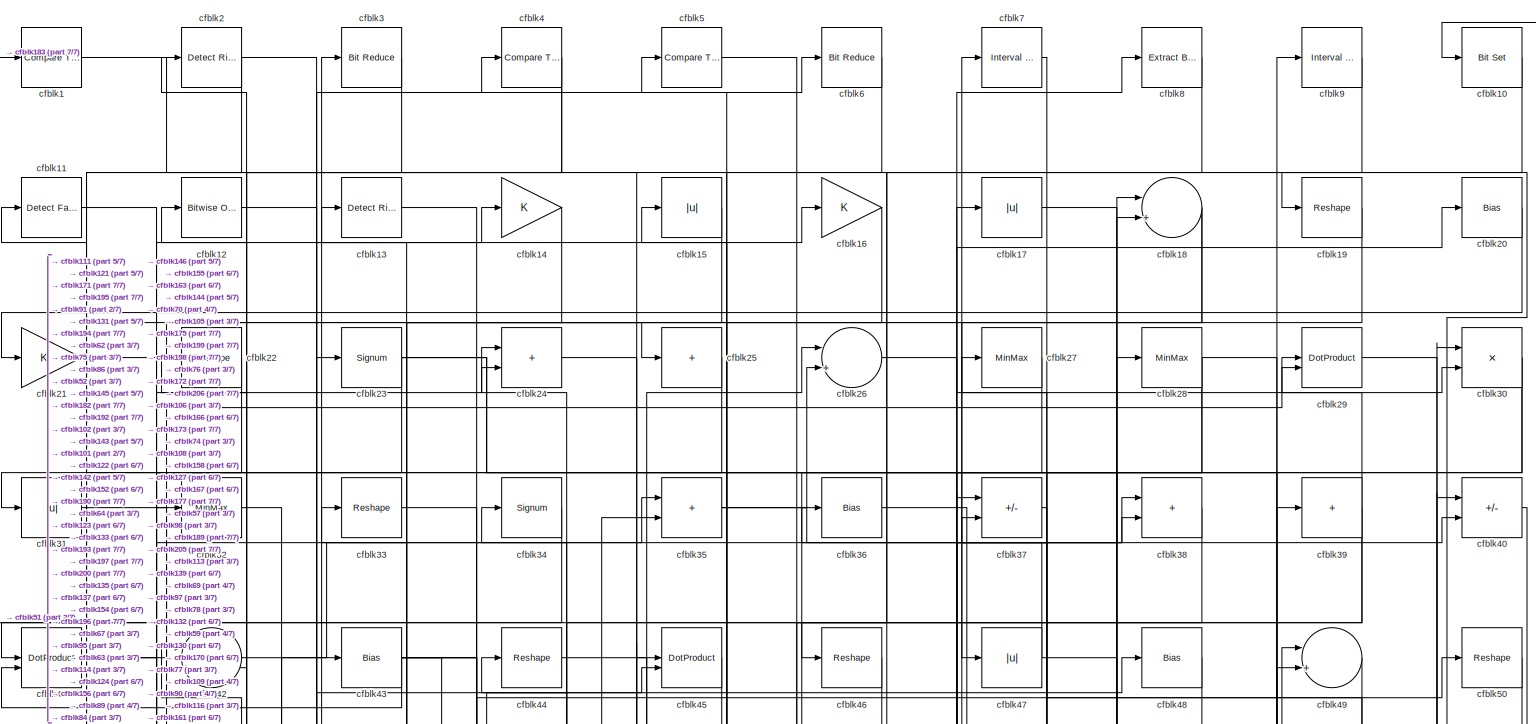
[diagram: root canvas - part 1/7, full width, top band]
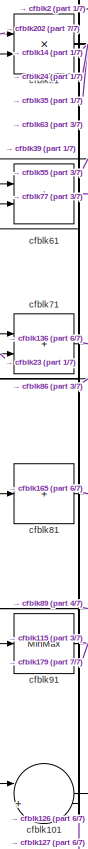
[diagram: root canvas - part 2/7, middle left region]
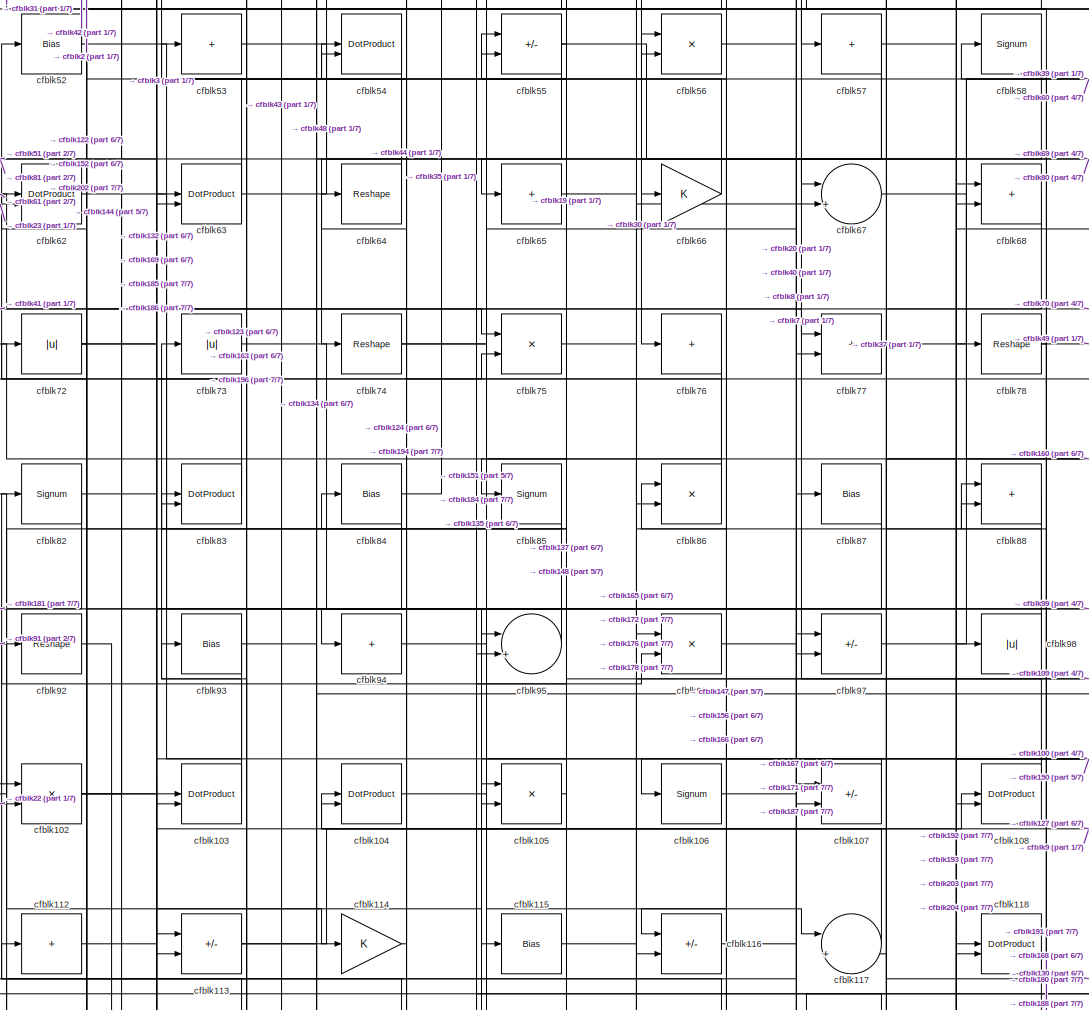
[diagram: root canvas - part 3/7, central region]
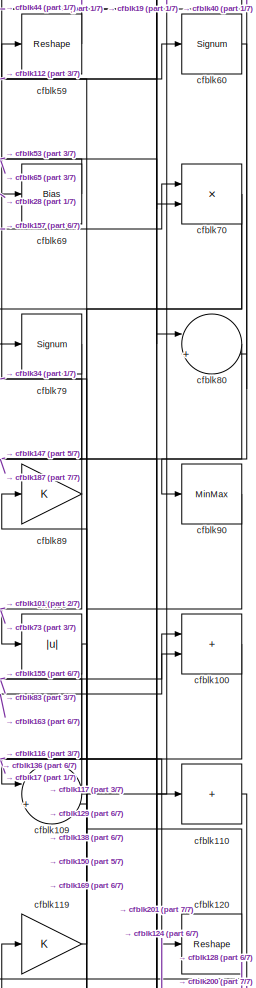
[diagram: root canvas - part 4/7, middle right region]
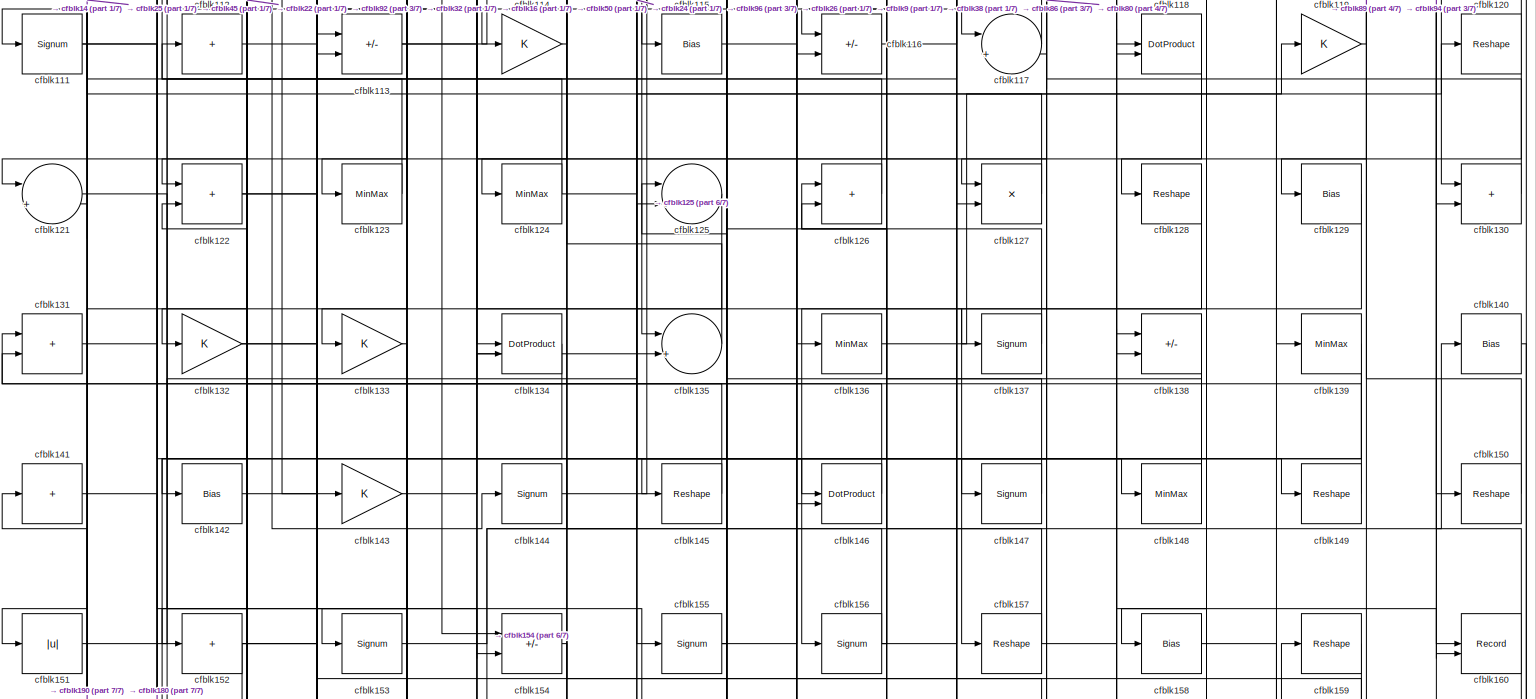
[diagram: root canvas - part 5/7, full width, middle band]
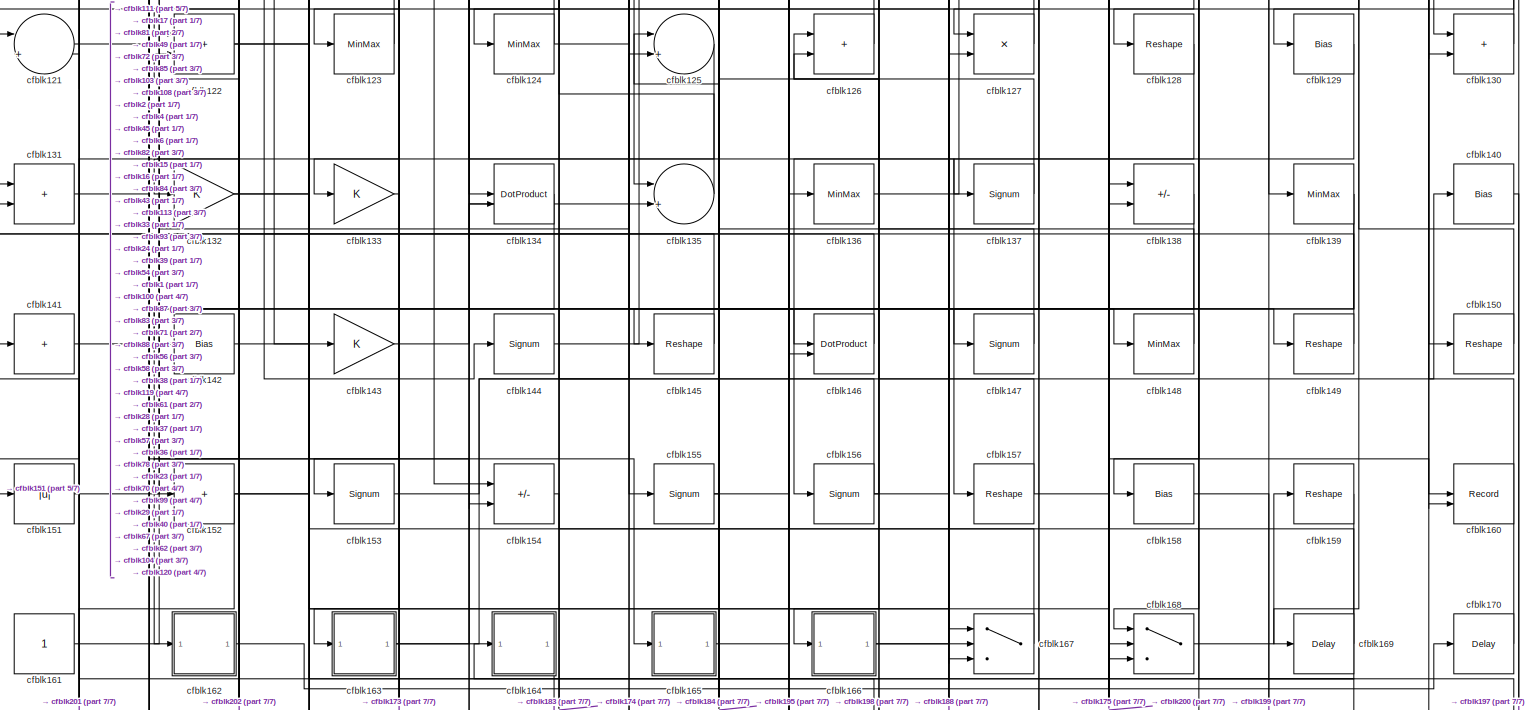
[diagram: root canvas - part 6/7, full width, bottom band]
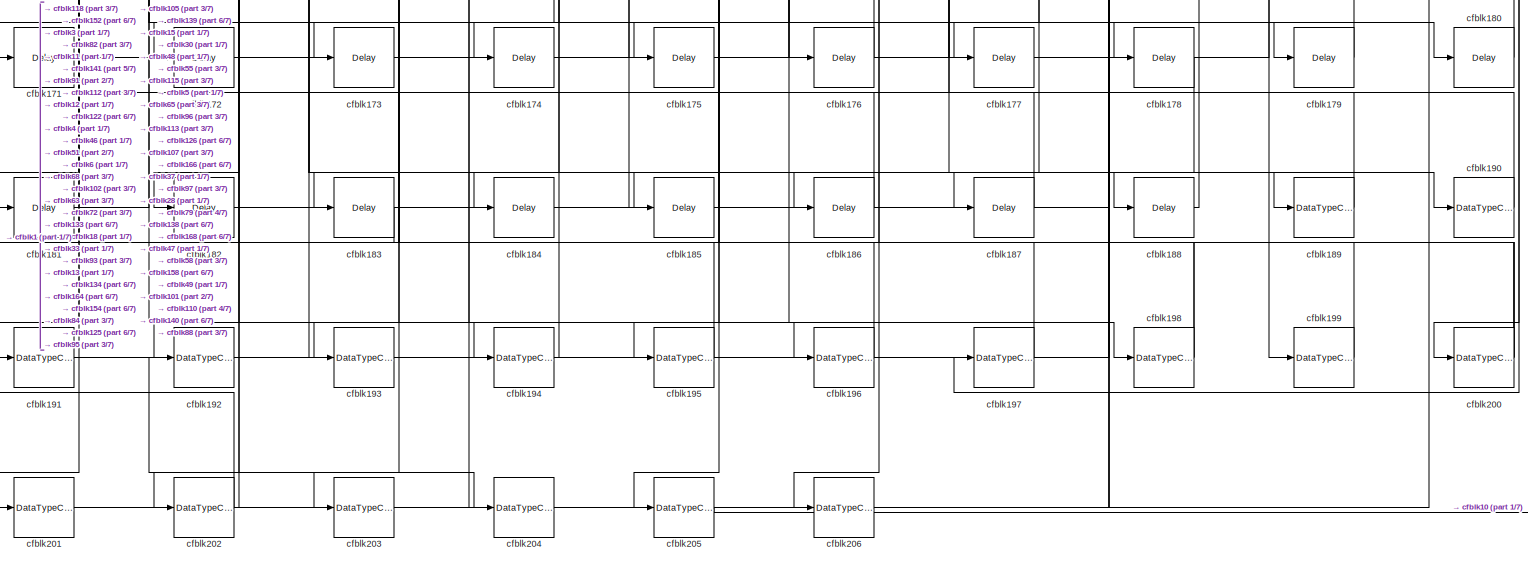
[diagram: root canvas - part 7/7, full width, bottom band]
MODEL slx_a49a852c828f
KIND model
CONFIG AbsTol = auto
CONFIG EnableMultiTasking = off
CONFIG FixedStep = auto
CONFIG MaxStep = auto
CONFIG MinStep = auto
CONFIG RelTol = 1e-3
CONFIG SampleTimeConstraint = Unconstrained
CONFIG SolverName = VariableStepAuto
CONFIG StartTime = 0.0
CONFIG StopTime = 10.0
BLOCK [Reference] cfblk1  REF=hdlsllib/Logic and Bit
Operations/Compare
To Zero
  SourceBlock = hdlsllib/Logic and Bit\nOperations/Compare\nTo Zero
  SourceType = Compare To Zero
BLOCK [Reference] cfblk10  REF=simulink/Logic and Bit
Operations/Bit Set
  LibrarySourceBlock = hdlsllib/Logic and Bit\nOperations/Bit Set
  SourceBlock = simulink/Logic and Bit\nOperations/Bit Set
  SourceType = Bit Set
BLOCK [Sum] cfblk100
  IconShape = rectangular
BLOCK [Sum] cfblk101
  Inputs = |++
BLOCK [Product] cfblk102
  Inputs = */
  RndMeth = Zero
  SaturateOnIntegerOverflow = on
BLOCK [DotProduct] cfblk103
  OutDataTypeStr = Inherit: Inherit via internal rule
BLOCK [DotProduct] cfblk104
  OutDataTypeStr = Inherit: Inherit via internal rule
BLOCK [Product] cfblk105
  Inputs = */
  RndMeth = Zero
  SaturateOnIntegerOverflow = on
BLOCK [Signum] cfblk106
BLOCK [Sum] cfblk107
  IconShape = rectangular
  Inputs = +-
BLOCK [DotProduct] cfblk108
  OutDataTypeStr = Inherit: Inherit via internal rule
BLOCK [Sum] cfblk109
  Inputs = |++
BLOCK [Reference] cfblk11  REF=hdlsllib/Logic and Bit
Operations/Detect Fall
Nonpositive
  SourceBlock = hdlsllib/Logic and Bit\nOperations/Detect Fall\nNonpositive
  SourceType = Detect Fall Nonpositive
BLOCK [Sum] cfblk110
  IconShape = rectangular
  Inputs = +
BLOCK [Signum] cfblk111
BLOCK [Sum] cfblk112
  IconShape = rectangular
  Inputs = +
BLOCK [Sum] cfblk113
  IconShape = rectangular
  Inputs = +-
BLOCK [Gain] cfblk114
BLOCK [Bias] cfblk115
  Bias = 0.0
  SaturateOnIntegerOverflow = off
BLOCK [Sum] cfblk116
  IconShape = rectangular
  Inputs = +-
BLOCK [Sum] cfblk117
  Inputs = |++
BLOCK [DotProduct] cfblk118
  OutDataTypeStr = Inherit: Inherit via internal rule
BLOCK [Gain] cfblk119
BLOCK [Reference] cfblk12  REF=simulink/Logic and Bit
Operations/Bitwise
Operator
  LibrarySourceBlock = hdlsllib/Logic and Bit\nOperations/Bitwise\nOperator
  SourceBlock = simulink/Logic and Bit\nOperations/Bitwise\nOperator
  SourceType = Bitwise Operator
BLOCK [Reshape] cfblk120
BLOCK [Sum] cfblk121
  Inputs = |++
BLOCK [Sum] cfblk122
  IconShape = rectangular
BLOCK [MinMax] cfblk123
BLOCK [MinMax] cfblk124
BLOCK [Sum] cfblk125
  Inputs = |++
BLOCK [Sum] cfblk126
  IconShape = rectangular
BLOCK [Product] cfblk127
  Inputs = */
  RndMeth = Zero
  SaturateOnIntegerOverflow = on
BLOCK [Reshape] cfblk128
BLOCK [Bias] cfblk129
  Bias = 0.0
  SaturateOnIntegerOverflow = off
BLOCK [Reference] cfblk13  REF=hdlsllib/Logic and Bit
Operations/Detect Rise
Nonnegative
  SourceBlock = hdlsllib/Logic and Bit\nOperations/Detect Rise\nNonnegative
  SourceType = Detect Rise Nonnegative
BLOCK [Sum] cfblk130
  IconShape = rectangular
BLOCK [Sum] cfblk131
  IconShape = rectangular
BLOCK [Gain] cfblk132
BLOCK [Gain] cfblk133
BLOCK [DotProduct] cfblk134
  OutDataTypeStr = Inherit: Inherit via internal rule
BLOCK [Sum] cfblk135
  Inputs = |++
BLOCK [MinMax] cfblk136
BLOCK [Signum] cfblk137
BLOCK [Sum] cfblk138
  IconShape = rectangular
  Inputs = +-
BLOCK [MinMax] cfblk139
BLOCK [Gain] cfblk14
BLOCK [Bias] cfblk140
  Bias = 0.0
  SaturateOnIntegerOverflow = off
BLOCK [Sum] cfblk141
  IconShape = rectangular
  Inputs = +
BLOCK [Bias] cfblk142
  Bias = 0.0
  SaturateOnIntegerOverflow = off
BLOCK [Gain] cfblk143
BLOCK [Signum] cfblk144
BLOCK [Reshape] cfblk145
BLOCK [DotProduct] cfblk146
  OutDataTypeStr = Inherit: Inherit via internal rule
BLOCK [Signum] cfblk147
BLOCK [MinMax] cfblk148
BLOCK [Reshape] cfblk149
BLOCK [Abs] cfblk15
  SaturateOnIntegerOverflow = off
BLOCK [Reshape] cfblk150
BLOCK [Abs] cfblk151
  SaturateOnIntegerOverflow = off
BLOCK [Sum] cfblk152
  IconShape = rectangular
  Inputs = +
BLOCK [Signum] cfblk153
BLOCK [Sum] cfblk154
  IconShape = rectangular
  Inputs = +-
BLOCK [Signum] cfblk155
BLOCK [Signum] cfblk156
BLOCK [Reshape] cfblk157
BLOCK [Bias] cfblk158
  Bias = 0.0
  SaturateOnIntegerOverflow = off
BLOCK [Reshape] cfblk159
BLOCK [Gain] cfblk16
BLOCK [Record] cfblk160
  CompatibilityTag = XY
  FileSettingsInternal = {"entries":[{"content":{"excelSettings":{"content":{},"type":"Streamout.ExcelSettings"}},"type":"Streamout.FileSettingStorage","uuid":""}],"packageUris":["http:\/\/schema.mathworks.com\/mf0\/streamout_blocks\/R2020a"],"version":"1.0"}
  Layout = [1 1]
  SignalsInternal = {"entries":[{"content":{"signals":[{"content":{"blockPath":[],"dimensions":[1],"domain":"","lineColor":"#a2142f","plots":[1],"port":1,"signalID":401,"signalName":"XY Graph:1"},"type":"RecordBlkView.Signal","uuid":""},{"content":{"blockPath":[],"dimensions":[1],"domain":"","lineColor":"#139fff","plots":[1],"port":2,"signalID":404,"signalName":"XY Graph:2"},"type":"RecordBlkView.Signal","uuid":""}]}...<+144ch>
  VisualizationBindings = {"xyplotplugin":{"info":[{"series":[{"bindingParametersList":[{"parameter":"X-Axis","signalID":401,"signalName":"XY Graph:1"},{"parameter":"Y-Axis","signalID":404,"signalName":"XY Graph:2"}],"seriesID":26922}],"subplotID":1}]}}
  st = -1
BLOCK [Constant] cfblk161
  SampleTime = -1
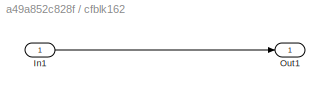
BLOCK [SubSystem] cfblk162
  LibrarySourceBlock = hdlsllib/Ports &\nSubsystems/Subsystem
BLOCK [Inport] cfblk162/In1
BLOCK [Outport] cfblk162/Out1
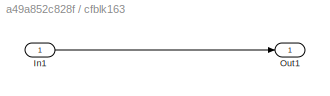
BLOCK [SubSystem] cfblk163
  LibrarySourceBlock = hdlsllib/Ports &\nSubsystems/Subsystem
BLOCK [Inport] cfblk163/In1
BLOCK [Outport] cfblk163/Out1
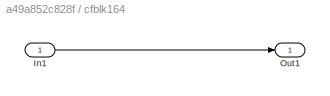
BLOCK [SubSystem] cfblk164
  LibrarySourceBlock = hdlsllib/Ports &\nSubsystems/Subsystem
BLOCK [Inport] cfblk164/In1
BLOCK [Outport] cfblk164/Out1
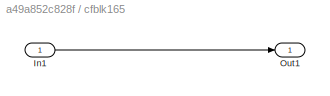
BLOCK [SubSystem] cfblk165
  LibrarySourceBlock = hdlsllib/Ports &\nSubsystems/Subsystem
BLOCK [Inport] cfblk165/In1
BLOCK [Outport] cfblk165/Out1
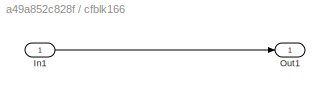
BLOCK [SubSystem] cfblk166
  LibrarySourceBlock = hdlsllib/Ports &\nSubsystems/Subsystem
BLOCK [Inport] cfblk166/In1
BLOCK [Outport] cfblk166/Out1
BLOCK [Switch] cfblk167
  InputSameDT = off
  SaturateOnIntegerOverflow = off
BLOCK [Switch] cfblk168
  InputSameDT = off
  SaturateOnIntegerOverflow = off
BLOCK [Delay] cfblk169
  InputPortMap = u0
  SampleTime = 1
BLOCK [Abs] cfblk17
  SaturateOnIntegerOverflow = off
BLOCK [Delay] cfblk170
  InputPortMap = u0
  SampleTime = 1
BLOCK [Delay] cfblk171
  InputPortMap = u0
  SampleTime = 1
BLOCK [Delay] cfblk172
  InputPortMap = u0
  SampleTime = 1
BLOCK [Delay] cfblk173
  InputPortMap = u0
  SampleTime = 1
BLOCK [Delay] cfblk174
  InputPortMap = u0
  SampleTime = 1
BLOCK [Delay] cfblk175
  InputPortMap = u0
  SampleTime = 1
BLOCK [Delay] cfblk176
  InputPortMap = u0
  SampleTime = 1
BLOCK [Delay] cfblk177
  InputPortMap = u0
  SampleTime = 1
BLOCK [Delay] cfblk178
  InputPortMap = u0
  SampleTime = 1
BLOCK [Delay] cfblk179
  InputPortMap = u0
  SampleTime = 1
BLOCK [Sum] cfblk18
  Inputs = |++
BLOCK [Delay] cfblk180
  InputPortMap = u0
  SampleTime = 1
BLOCK [Delay] cfblk181
  InputPortMap = u0
  SampleTime = 1
BLOCK [Delay] cfblk182
  InputPortMap = u0
  SampleTime = 1
BLOCK [Delay] cfblk183
  InputPortMap = u0
  SampleTime = 1
BLOCK [Delay] cfblk184
  InputPortMap = u0
  SampleTime = 1
BLOCK [Delay] cfblk185
  InputPortMap = u0
  SampleTime = 1
BLOCK [Delay] cfblk186
  InputPortMap = u0
  SampleTime = 1
BLOCK [Delay] cfblk187
  InputPortMap = u0
  SampleTime = 1
BLOCK [Delay] cfblk188
  InputPortMap = u0
  SampleTime = 1
BLOCK [DataTypeConversion] cfblk189
  OutDataTypeStr = boolean
  RndMeth = Floor
  SaturateOnIntegerOverflow = off
BLOCK [Reshape] cfblk19
BLOCK [DataTypeConversion] cfblk190
  OutDataTypeStr = uint8
  RndMeth = Floor
  SaturateOnIntegerOverflow = off
BLOCK [DataTypeConversion] cfblk191
  RndMeth = Floor
  SaturateOnIntegerOverflow = off
BLOCK [DataTypeConversion] cfblk192
  OutDataTypeStr = uint8
  RndMeth = Floor
  SaturateOnIntegerOverflow = off
BLOCK [DataTypeConversion] cfblk193
  OutDataTypeStr = uint8
  RndMeth = Floor
  SaturateOnIntegerOverflow = off
BLOCK [DataTypeConversion] cfblk194
  OutDataTypeStr = uint8
  RndMeth = Floor
  SaturateOnIntegerOverflow = off
BLOCK [DataTypeConversion] cfblk195
  OutDataTypeStr = uint8
  RndMeth = Floor
  SaturateOnIntegerOverflow = off
BLOCK [DataTypeConversion] cfblk196
  OutDataTypeStr = uint8
  RndMeth = Floor
  SaturateOnIntegerOverflow = off
BLOCK [DataTypeConversion] cfblk197
  OutDataTypeStr = uint8
  RndMeth = Floor
  SaturateOnIntegerOverflow = off
BLOCK [DataTypeConversion] cfblk198
  RndMeth = Floor
  SaturateOnIntegerOverflow = off
BLOCK [DataTypeConversion] cfblk199
  OutDataTypeStr = uint8
  RndMeth = Floor
  SaturateOnIntegerOverflow = off
BLOCK [Reference] cfblk2  REF=hdlsllib/Logic and Bit
Operations/Detect Rise
Nonnegative
  SourceBlock = hdlsllib/Logic and Bit\nOperations/Detect Rise\nNonnegative
  SourceType = Detect Rise Nonnegative
BLOCK [Bias] cfblk20
  Bias = 0.0
  SaturateOnIntegerOverflow = off
BLOCK [DataTypeConversion] cfblk200
  RndMeth = Floor
  SaturateOnIntegerOverflow = off
BLOCK [DataTypeConversion] cfblk201
  OutDataTypeStr = uint8
  RndMeth = Floor
  SaturateOnIntegerOverflow = off
BLOCK [DataTypeConversion] cfblk202
  RndMeth = Floor
  SaturateOnIntegerOverflow = off
BLOCK [DataTypeConversion] cfblk203
  OutDataTypeStr = uint8
  RndMeth = Floor
  SaturateOnIntegerOverflow = off
BLOCK [DataTypeConversion] cfblk204
  OutDataTypeStr = uint8
  RndMeth = Floor
  SaturateOnIntegerOverflow = off
BLOCK [DataTypeConversion] cfblk205
  OutDataTypeStr = boolean
  RndMeth = Floor
  SaturateOnIntegerOverflow = off
BLOCK [DataTypeConversion] cfblk206
  OutDataTypeStr = uint8
  RndMeth = Floor
  SaturateOnIntegerOverflow = off
BLOCK [Gain] cfblk21
BLOCK [Reshape] cfblk22
BLOCK [Signum] cfblk23
BLOCK [Sum] cfblk24
  IconShape = rectangular
BLOCK [Sum] cfblk25
  IconShape = rectangular
  Inputs = +
BLOCK [Sum] cfblk26
  Inputs = |++
BLOCK [MinMax] cfblk27
BLOCK [MinMax] cfblk28
BLOCK [DotProduct] cfblk29
  OutDataTypeStr = Inherit: Inherit via internal rule
BLOCK [Reference] cfblk3  REF=hdlsllib/Logic and Bit
Operations/Bit Reduce
  SourceBlock = hdlsllib/Logic and Bit\nOperations/Bit Reduce
  SourceType = Bit Reduce
BLOCK [Product] cfblk30
  Inputs = */
  RndMeth = Zero
  SaturateOnIntegerOverflow = on
BLOCK [Abs] cfblk31
  SaturateOnIntegerOverflow = off
BLOCK [MinMax] cfblk32
BLOCK [Reshape] cfblk33
BLOCK [Signum] cfblk34
BLOCK [Sum] cfblk35
  IconShape = rectangular
BLOCK [Bias] cfblk36
  Bias = 0.0
  SaturateOnIntegerOverflow = off
BLOCK [Sum] cfblk37
  IconShape = rectangular
  Inputs = +-
BLOCK [Sum] cfblk38
  IconShape = rectangular
BLOCK [Sum] cfblk39
  IconShape = rectangular
  Inputs = +
BLOCK [Reference] cfblk4  REF=hdlsllib/Logic and Bit
Operations/Compare
To Constant
  SourceBlock = hdlsllib/Logic and Bit\nOperations/Compare\nTo Constant
  SourceType = Compare To Constant
BLOCK [Sum] cfblk40
  IconShape = rectangular
  Inputs = +-
BLOCK [DotProduct] cfblk41
  OutDataTypeStr = Inherit: Inherit via internal rule
BLOCK [Sum] cfblk42
  Inputs = |++
BLOCK [Bias] cfblk43
  Bias = 0.0
  SaturateOnIntegerOverflow = off
BLOCK [Reshape] cfblk44
BLOCK [DotProduct] cfblk45
  OutDataTypeStr = Inherit: Inherit via internal rule
BLOCK [Reshape] cfblk46
BLOCK [Abs] cfblk47
  SaturateOnIntegerOverflow = off
BLOCK [Bias] cfblk48
  Bias = 0.0
  SaturateOnIntegerOverflow = off
BLOCK [Sum] cfblk49
  Inputs = |++
BLOCK [Reference] cfblk5  REF=hdlsllib/Logic and Bit
Operations/Compare
To Zero
  SourceBlock = hdlsllib/Logic and Bit\nOperations/Compare\nTo Zero
  SourceType = Compare To Zero
BLOCK [Reshape] cfblk50
BLOCK [Product] cfblk51
  Inputs = */
  RndMeth = Zero
  SaturateOnIntegerOverflow = on
BLOCK [Bias] cfblk52
  Bias = 0.0
  SaturateOnIntegerOverflow = off
BLOCK [Sum] cfblk53
  IconShape = rectangular
  Inputs = +
BLOCK [DotProduct] cfblk54
  OutDataTypeStr = Inherit: Inherit via internal rule
BLOCK [Sum] cfblk55
  IconShape = rectangular
  Inputs = +-
BLOCK [Product] cfblk56
  Inputs = */
  RndMeth = Zero
  SaturateOnIntegerOverflow = on
BLOCK [Sum] cfblk57
  IconShape = rectangular
  Inputs = +
BLOCK [Signum] cfblk58
BLOCK [Reshape] cfblk59
BLOCK [Reference] cfblk6  REF=hdlsllib/Logic and Bit
Operations/Bit Reduce
  SourceBlock = hdlsllib/Logic and Bit\nOperations/Bit Reduce
  SourceType = Bit Reduce
BLOCK [Signum] cfblk60
BLOCK [Sum] cfblk61
  IconShape = rectangular
BLOCK [DotProduct] cfblk62
  OutDataTypeStr = Inherit: Inherit via internal rule
BLOCK [DotProduct] cfblk63
  OutDataTypeStr = Inherit: Inherit via internal rule
BLOCK [Reshape] cfblk64
BLOCK [Sum] cfblk65
  IconShape = rectangular
  Inputs = +
BLOCK [Gain] cfblk66
BLOCK [Sum] cfblk67
  Inputs = |++
BLOCK [Sum] cfblk68
  IconShape = rectangular
BLOCK [Bias] cfblk69
  Bias = 0.0
  SaturateOnIntegerOverflow = off
BLOCK [Reference] cfblk7  REF=hdlsllib/Logic and Bit
Operations/Interval Test
  SourceBlock = hdlsllib/Logic and Bit\nOperations/Interval Test
  SourceType = Interval Test
BLOCK [Product] cfblk70
  Inputs = */
  RndMeth = Zero
  SaturateOnIntegerOverflow = on
BLOCK [Sum] cfblk71
  IconShape = rectangular
BLOCK [Abs] cfblk72
  SaturateOnIntegerOverflow = off
BLOCK [Abs] cfblk73
  SaturateOnIntegerOverflow = off
BLOCK [Reshape] cfblk74
BLOCK [Product] cfblk75
  Inputs = */
  RndMeth = Zero
  SaturateOnIntegerOverflow = on
BLOCK [Sum] cfblk76
  IconShape = rectangular
  Inputs = +
BLOCK [Sum] cfblk77
  IconShape = rectangular
BLOCK [Reshape] cfblk78
BLOCK [Signum] cfblk79
BLOCK [Reference] cfblk8  REF=simulink/Logic and Bit
Operations/Extract Bits
  LibrarySourceBlock = hdlsllib/Logic and Bit\nOperations/Extract Bits
  SourceBlock = simulink/Logic and Bit\nOperations/Extract Bits
  SourceType = Extract Bits
BLOCK [Sum] cfblk80
  Inputs = |++
BLOCK [Sum] cfblk81
  IconShape = rectangular
  Inputs = +
BLOCK [Signum] cfblk82
BLOCK [DotProduct] cfblk83
  OutDataTypeStr = Inherit: Inherit via internal rule
BLOCK [Bias] cfblk84
  Bias = 0.0
  SaturateOnIntegerOverflow = off
BLOCK [Signum] cfblk85
BLOCK [Product] cfblk86
  Inputs = */
  RndMeth = Zero
  SaturateOnIntegerOverflow = on
BLOCK [Bias] cfblk87
  Bias = 0.0
  SaturateOnIntegerOverflow = off
BLOCK [Sum] cfblk88
  IconShape = rectangular
BLOCK [Gain] cfblk89
BLOCK [Reference] cfblk9  REF=hdlsllib/Logic and Bit
Operations/Interval Test
  SourceBlock = hdlsllib/Logic and Bit\nOperations/Interval Test
  SourceType = Interval Test
BLOCK [MinMax] cfblk90
BLOCK [MinMax] cfblk91
BLOCK [Reshape] cfblk92
BLOCK [Bias] cfblk93
  Bias = 0.0
  SaturateOnIntegerOverflow = off
BLOCK [Sum] cfblk94
  IconShape = rectangular
  Inputs = +
BLOCK [Sum] cfblk95
  Inputs = |++
BLOCK [Product] cfblk96
  Inputs = */
  RndMeth = Zero
  SaturateOnIntegerOverflow = on
BLOCK [Sum] cfblk97
  IconShape = rectangular
  Inputs = +-
BLOCK [Abs] cfblk98
  SaturateOnIntegerOverflow = off
BLOCK [Abs] cfblk99
  SaturateOnIntegerOverflow = off
LINE cfblk100:1 -> cfblk116:1
NET cfblk101:1 -> cfblk23:1, cfblk71:2
NET cfblk102:1 -> cfblk114:1, cfblk186:1, cfblk43:1
LINE cfblk103:1 -> cfblk73:1
LINE cfblk104:1 -> cfblk117:1
LINE cfblk105:1 -> cfblk55:1
LINE cfblk106:1 -> cfblk40:2
LINE cfblk107:1 -> cfblk106:1
LINE cfblk108:1 -> cfblk7:1
NET cfblk109:1 -> cfblk19:1, cfblk83:2
LINE cfblk10:1 -> cfblk206:1
LINE cfblk110:1 -> cfblk200:1
NET cfblk111:1 -> cfblk149:1, cfblk154:2
LINE cfblk112:1 -> cfblk60:1
NET cfblk113:1 -> cfblk127:2, cfblk9:1
LINE cfblk114:1 -> cfblk44:1
LINE cfblk115:1 -> cfblk178:1
LINE cfblk116:1 -> cfblk20:1
LINE cfblk117:1 -> cfblk64:1
LINE cfblk118:1 -> cfblk191:1
LINE cfblk119:1 -> cfblk59:1
LINE cfblk11:1 -> cfblk194:1
NET cfblk120:1 -> cfblk128:1, cfblk79:1
LINE cfblk121:1 -> cfblk148:1
NET cfblk122:1 -> cfblk56:1, cfblk6:1
LINE cfblk123:1 -> cfblk82:1
NET cfblk124:1 -> cfblk120:1, cfblk62:1
LINE cfblk125:1 -> cfblk151:1
LINE cfblk126:1 -> cfblk71:1
LINE cfblk127:1 -> cfblk61:1
LINE cfblk128:1 -> cfblk157:1
LINE cfblk129:1 -> cfblk156:1
LINE cfblk12:1 -> cfblk190:1
LINE cfblk130:1 -> cfblk104:1
LINE cfblk131:1 -> cfblk32:1
NET cfblk132:1 -> cfblk108:1, cfblk4:1
LINE cfblk133:1 -> cfblk173:1
LINE cfblk134:1 -> cfblk162:1
LINE cfblk135:1 -> cfblk104:2
LINE cfblk136:1 -> cfblk119:1
LINE cfblk137:1 -> cfblk83:1
LINE cfblk138:1 -> cfblk153:1
NET cfblk139:1 -> cfblk184:1, cfblk195:1
LINE cfblk13:1 -> cfblk196:1
LINE cfblk140:1 -> cfblk197:1
LINE cfblk141:1 -> cfblk180:1
LINE cfblk142:1 -> cfblk16:1
LINE cfblk143:1 -> cfblk50:1
LINE cfblk144:1 -> cfblk26:1
LINE cfblk145:1 -> cfblk22:1
LINE cfblk146:1 -> cfblk131:2
LINE cfblk147:1 -> cfblk86:1
LINE cfblk148:1 -> cfblk92:1
LINE cfblk149:1 -> cfblk131:1
LINE cfblk14:1 -> cfblk121:1
LINE cfblk150:1 -> cfblk89:1
LINE cfblk151:1 -> cfblk96:2
NET cfblk152:1 -> cfblk168:3, cfblk201:1, cfblk45:2
LINE cfblk153:1 -> cfblk140:1
LINE cfblk154:1 -> cfblk174:1
NET cfblk155:1 -> cfblk100:1, cfblk125:1
NET cfblk156:1 -> cfblk24:2, cfblk56:2, cfblk87:1
NET cfblk157:1 -> cfblk126:1, cfblk70:1
LINE cfblk158:1 -> cfblk199:1
LINE cfblk159:1 -> cfblk164:1
LINE cfblk15:1 -> cfblk123:1
LINE cfblk161:1 -> cfblk17:1
LINE cfblk162/In1:1 -> cfblk162/Out1:1
LINE cfblk162:1 -> cfblk170:1
LINE cfblk163/In1:1 -> cfblk163/Out1:1
NET cfblk163:1 -> cfblk100:2, cfblk45:1
LINE cfblk164/In1:1 -> cfblk164/Out1:1
LINE cfblk164:1 -> cfblk183:1
LINE cfblk165/In1:1 -> cfblk165/Out1:1
LINE cfblk165:1 -> cfblk88:1
LINE cfblk166/In1:1 -> cfblk166/Out1:1
NET cfblk166:1 -> cfblk188:1, cfblk38:1
LINE cfblk167:1 -> cfblk54:1
LINE cfblk168:1 -> cfblk159:1
LINE cfblk169:1 -> cfblk103:1
LINE cfblk16:1 -> cfblk133:1
LINE cfblk170:1 -> cfblk40:1
LINE cfblk171:1 -> cfblk107:1
LINE cfblk172:1 -> cfblk96:1
LINE cfblk173:1 -> cfblk37:1
LINE cfblk174:1 -> cfblk125:2
LINE cfblk175:1 -> cfblk138:1
LINE cfblk176:1 -> cfblk113:1
LINE cfblk177:1 -> cfblk49:2
LINE cfblk178:1 -> cfblk203:1
LINE cfblk179:1 -> cfblk101:2
LINE cfblk17:1 -> cfblk109:1
LINE cfblk180:1 -> cfblk88:2
LINE cfblk181:1 -> cfblk102:1
LINE cfblk182:1 -> cfblk18:1
LINE cfblk183:1 -> cfblk1:1
LINE cfblk184:1 -> cfblk95:2
LINE cfblk185:1 -> cfblk105:2
LINE cfblk186:1 -> cfblk55:2
LINE cfblk187:1 -> cfblk97:1
LINE cfblk188:1 -> cfblk58:1
LINE cfblk189:1 -> cfblk12:1
NET cfblk18:1 -> cfblk193:1, cfblk47:1
LINE cfblk190:1 -> cfblk141:1
NET cfblk191:1 -> cfblk204:1, cfblk63:1
LINE cfblk192:1 -> cfblk118:1
LINE cfblk193:1 -> cfblk118:2
LINE cfblk194:1 -> cfblk84:1
LINE cfblk195:1 -> cfblk11:1
LINE cfblk196:1 -> cfblk93:1
LINE cfblk197:1 -> cfblk13:1
NET cfblk198:1 -> cfblk122:2, cfblk15:1
LINE cfblk199:1 -> cfblk5:1
LINE cfblk19:1 -> cfblk105:1
LINE cfblk1:1 -> cfblk155:1
NET cfblk200:1 -> cfblk126:2, cfblk168:2, cfblk33:1
LINE cfblk201:1 -> cfblk110:1
NET cfblk202:1 -> cfblk112:1, cfblk134:2, cfblk51:1
LINE cfblk203:1 -> cfblk68:1
LINE cfblk204:1 -> cfblk68:2
LINE cfblk205:1 -> cfblk10:1
LINE cfblk206:1 -> cfblk28:1
LINE cfblk20:1 -> cfblk21:1
LINE cfblk21:1 -> cfblk25:1
LINE cfblk22:1 -> cfblk102:2
NET cfblk23:1 -> cfblk139:1, cfblk62:2, cfblk78:1
LINE cfblk24:1 -> cfblk146:1
LINE cfblk25:1 -> cfblk111:1
LINE cfblk26:1 -> cfblk30:2
LINE cfblk27:1 -> cfblk31:1
NET cfblk28:1 -> cfblk167:3, cfblk177:1, cfblk69:1
LINE cfblk29:1 -> cfblk130:2
NET cfblk2:1 -> cfblk167:2, cfblk91:1
NET cfblk30:1 -> cfblk175:1, cfblk76:1
LINE cfblk31:1 -> cfblk86:2
LINE cfblk32:1 -> cfblk143:1
LINE cfblk33:1 -> cfblk137:1
LINE cfblk34:1 -> cfblk41:1
NET cfblk35:1 -> cfblk26:2, cfblk38:2
LINE cfblk36:1 -> cfblk158:1
LINE cfblk37:1 -> cfblk127:1
LINE cfblk38:1 -> cfblk146:2
NET cfblk39:1 -> cfblk124:1, cfblk29:2, cfblk51:2
LINE cfblk3:1 -> cfblk171:1
LINE cfblk40:1 -> cfblk90:1
NET cfblk41:1 -> cfblk29:1, cfblk75:1
LINE cfblk42:1 -> cfblk18:2
NET cfblk43:1 -> cfblk135:2, cfblk154:1, cfblk41:2, cfblk67:1, cfblk95:1
LINE cfblk44:1 -> cfblk70:2
LINE cfblk45:1 -> cfblk121:2
LINE cfblk46:1 -> cfblk172:1
NET cfblk47:1 -> cfblk189:1, cfblk36:1
LINE cfblk48:1 -> cfblk205:1
LINE cfblk49:1 -> cfblk132:1
NET cfblk4:1 -> cfblk192:1, cfblk42:2
LINE cfblk50:1 -> cfblk142:1
NET cfblk51:1 -> cfblk14:1, cfblk24:1, cfblk35:1, cfblk63:2
NET cfblk52:1 -> cfblk42:1, cfblk97:2
LINE cfblk53:1 -> cfblk80:1
LINE cfblk54:1 -> cfblk74:1
NET cfblk55:1 -> cfblk108:2, cfblk81:1, cfblk85:1
LINE cfblk56:1 -> cfblk167:1
NET cfblk57:1 -> cfblk160:2, cfblk66:1, cfblk77:2
LINE cfblk58:1 -> cfblk166:1
LINE cfblk59:1 -> cfblk27:1
LINE cfblk5:1 -> cfblk198:1
LINE cfblk60:1 -> cfblk80:2
LINE cfblk61:1 -> cfblk77:1
LINE cfblk62:1 -> cfblk130:1
NET cfblk63:1 -> cfblk2:1, cfblk48:1
LINE cfblk64:1 -> cfblk3:1
LINE cfblk65:1 -> cfblk176:1
LINE cfblk66:1 -> cfblk53:1
LINE cfblk67:1 -> cfblk160:1
LINE cfblk68:1 -> cfblk202:1
LINE cfblk69:1 -> cfblk65:1
LINE cfblk6:1 -> cfblk182:1
NET cfblk70:1 -> cfblk117:2, cfblk129:1
LINE cfblk71:1 -> cfblk136:1
NET cfblk72:1 -> cfblk122:1, cfblk185:1, cfblk54:2
LINE cfblk73:1 -> cfblk99:1
NET cfblk74:1 -> cfblk8:1, cfblk98:1
LINE cfblk75:1 -> cfblk67:2
LINE cfblk76:1 -> cfblk116:2
LINE cfblk77:1 -> cfblk30:1
NET cfblk78:1 -> cfblk168:1, cfblk49:1
LINE cfblk79:1 -> cfblk187:1
LINE cfblk7:1 -> cfblk57:1
LINE cfblk80:1 -> cfblk147:1
LINE cfblk81:1 -> cfblk165:1
NET cfblk82:1 -> cfblk181:1, cfblk75:2
LINE cfblk83:1 -> cfblk52:1
NET cfblk84:1 -> cfblk163:1, cfblk35:2
LINE cfblk85:1 -> cfblk152:1
LINE cfblk86:1 -> cfblk61:2
LINE cfblk87:1 -> cfblk135:1
LINE cfblk88:1 -> cfblk103:2
NET cfblk89:1 -> cfblk101:1, cfblk34:1
LINE cfblk8:1 -> cfblk46:1
LINE cfblk90:1 -> cfblk109:2
NET cfblk91:1 -> cfblk115:1, cfblk179:1
LINE cfblk92:1 -> cfblk144:1
NET cfblk93:1 -> cfblk113:2, cfblk134:1
LINE cfblk94:1 -> cfblk150:1
NET cfblk95:1 -> cfblk72:1, cfblk94:1
LINE cfblk96:1 -> cfblk107:2
LINE cfblk97:1 -> cfblk39:1
LINE cfblk98:1 -> cfblk37:2
NET cfblk99:1 -> cfblk138:2, cfblk169:1
LINE cfblk9:1 -> cfblk145:1
note: NET lines group one-source signal fan-out (src -> all destinations, sorted); 1:1 wires keep LINE
